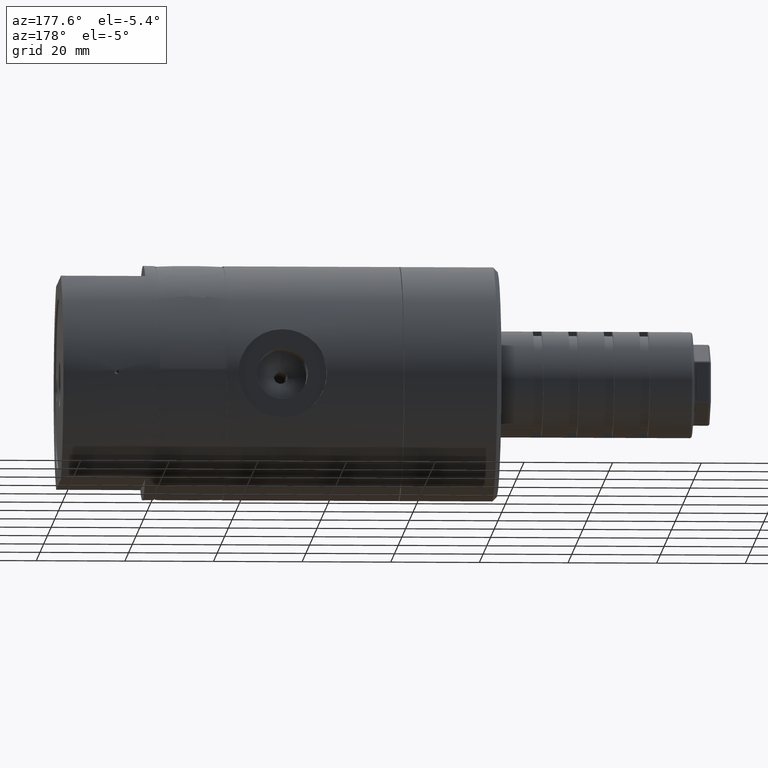
[diagram: clean part render]
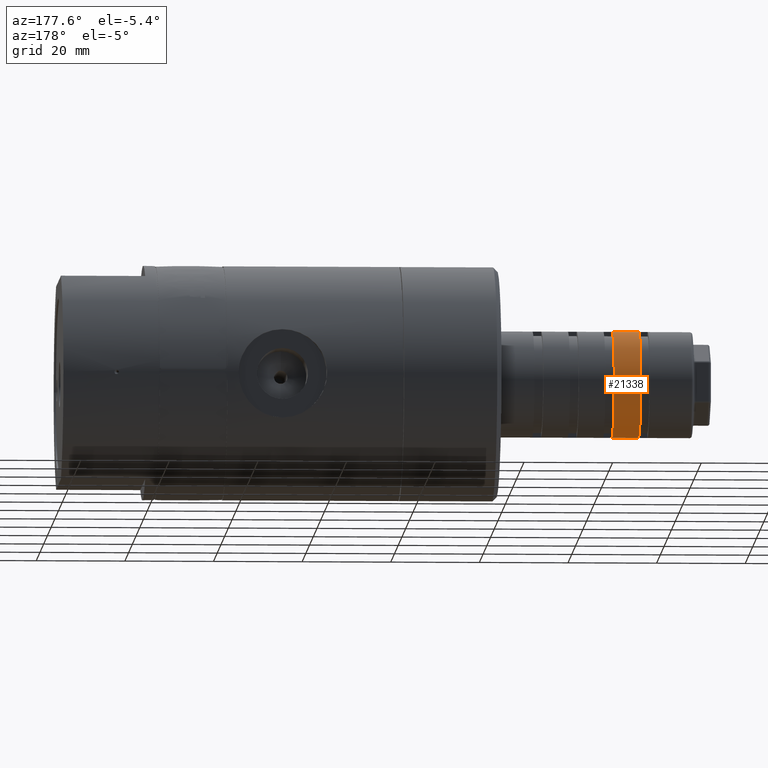
[diagram: same view with one face highlighted and labeled with its STEP entity id]
A machine part, auxiliary view. The second image highlights one B-rep face of the part: STEP entity #21338.
In plain terms, the highlighted cylindrical surface (partial cylindrical patch) has radius 12 mm, axis along (1, 0, 0).
Its self-contained STEP definition (entity closure, byte-faithful):
#313 = CIRCLE ( 'NONE', #7891, 12.00000000000000000 ) ;
#613 = CARTESIAN_POINT ( 'NONE',  ( -130.8999999999999800, 0.0000000000000000000, 0.0000000000000000000 ) ) ;
#1178 = FACE_OUTER_BOUND ( 'NONE', #19661, .T. ) ;
#1756 = EDGE_CURVE ( 'NONE', #9073, #16068, #313, .T. ) ;
#1830 = EDGE_CURVE ( 'NONE', #16068, #11522, #6255, .T. ) ;
#2423 = DIRECTION ( 'NONE',  ( 0.0000000000000000000, -2.775557561562890400E-016, -1.000000000000000000 ) ) ;
#3574 = DIRECTION ( 'NONE',  ( 1.000000000000000000, 0.0000000000000000000, 0.0000000000000000000 ) ) ;
#3980 = CARTESIAN_POINT ( 'NONE',  ( -124.8999999999999900, -1.861092914898645100E-015, -12.00000000000000000 ) ) ;
#4039 = DIRECTION ( 'NONE',  ( 0.0000000000000000000, 2.775557561562890400E-016, 1.000000000000000000 ) ) ;
#4522 = ORIENTED_EDGE ( 'NONE', *, *, #1756, .F. ) ;
#4588 = DIRECTION ( 'NONE',  ( 0.0000000000000000000, 2.775557561562890400E-016, 1.000000000000000000 ) ) ;
#5524 = LINE ( 'NONE', #8301, #13053 ) ;
#6243 = VERTEX_POINT ( 'NONE', #6497 ) ;
#6255 = LINE ( 'NONE', #20696, #18900 ) ;
#6353 = AXIS2_PLACEMENT_3D ( 'NONE', #20447, #10600, #2423 ) ;
#6497 = CARTESIAN_POINT ( 'NONE',  ( -124.8999999999999900, 3.330669073875470000E-015, 12.00000000000000000 ) ) ;
#7783 = CARTESIAN_POINT ( 'NONE',  ( -130.8999999999999800, -1.861092914898645100E-015, -12.00000000000000000 ) ) ;
#7891 = AXIS2_PLACEMENT_3D ( 'NONE', #613, #13831, #4039 ) ;
#8228 = ORIENTED_EDGE ( 'NONE', *, *, #1830, .F. ) ;
#8301 = CARTESIAN_POINT ( 'NONE',  ( -142.9000000000000100, 4.800245232852292200E-015, 12.00000000000000000 ) ) ;
#8944 = AXIS2_PLACEMENT_3D ( 'NONE', #9603, #9526, #4588 ) ;
#9073 = VERTEX_POINT ( 'NONE', #20531 ) ;
#9526 = DIRECTION ( 'NONE',  ( -1.000000000000000000, 0.0000000000000000000, 0.0000000000000000000 ) ) ;
#9603 = CARTESIAN_POINT ( 'NONE',  ( -124.8999999999999900, 0.0000000000000000000, 0.0000000000000000000 ) ) ;
#10600 = DIRECTION ( 'NONE',  ( 1.000000000000000000, 0.0000000000000000000, 0.0000000000000000000 ) ) ;
#10809 = EDGE_CURVE ( 'NONE', #9073, #6243, #5524, .T. ) ;
#11522 = VERTEX_POINT ( 'NONE', #3980 ) ;
#13053 = VECTOR ( 'NONE', #3574, 1000.000000000000000 ) ;
#13317 = CYLINDRICAL_SURFACE ( 'NONE', #6353, 12.00000000000000000 ) ;
#13831 = DIRECTION ( 'NONE',  ( -1.000000000000000000, 0.0000000000000000000, 0.0000000000000000000 ) ) ;
#14471 = CIRCLE ( 'NONE', #8944, 12.00000000000000000 ) ;
#15474 = ORIENTED_EDGE ( 'NONE', *, *, #16048, .T. ) ;
#15782 = DIRECTION ( 'NONE',  ( 1.000000000000000000, 0.0000000000000000000, 0.0000000000000000000 ) ) ;
#16048 = EDGE_CURVE ( 'NONE', #6243, #11522, #14471, .T. ) ;
#16068 = VERTEX_POINT ( 'NONE', #7783 ) ;
#17774 = ORIENTED_EDGE ( 'NONE', *, *, #10809, .T. ) ;
#18900 = VECTOR ( 'NONE', #15782, 1000.000000000000000 ) ;
#19661 = EDGE_LOOP ( 'NONE', ( #4522, #17774, #15474, #8228 ) ) ;
#20447 = CARTESIAN_POINT ( 'NONE',  ( -142.9000000000000100, 0.0000000000000000000, 0.0000000000000000000 ) ) ;
#20531 = CARTESIAN_POINT ( 'NONE',  ( -130.8999999999999800, 3.330669073875470000E-015, 12.00000000000000000 ) ) ;
#20696 = CARTESIAN_POINT ( 'NONE',  ( -142.9000000000000100, -3.330669073875468400E-015, -12.00000000000000000 ) ) ;
#21338 = ADVANCED_FACE ( 'NONE', ( #1178 ), #13317, .T. ) ;